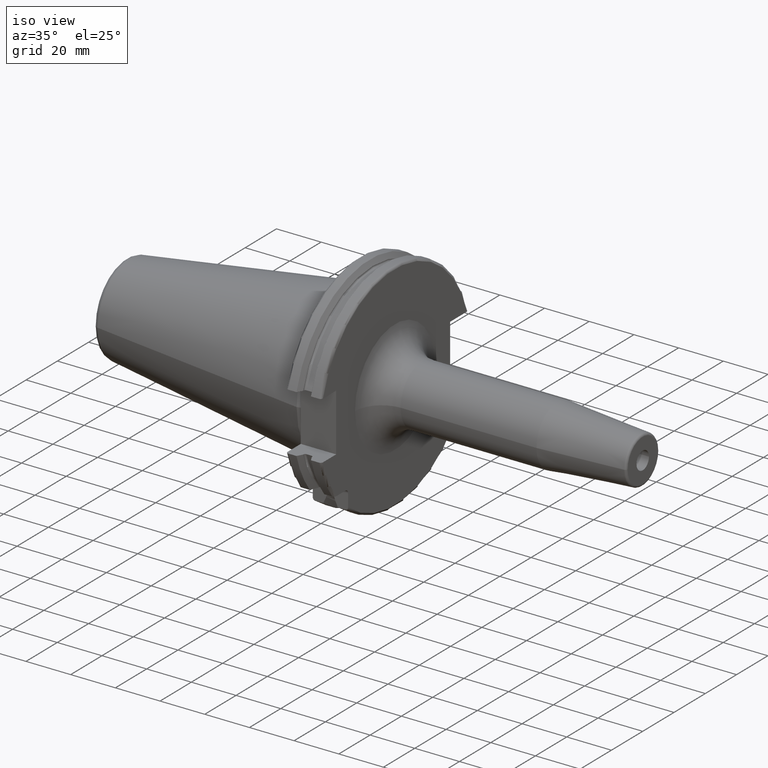
[diagram: clean part render]
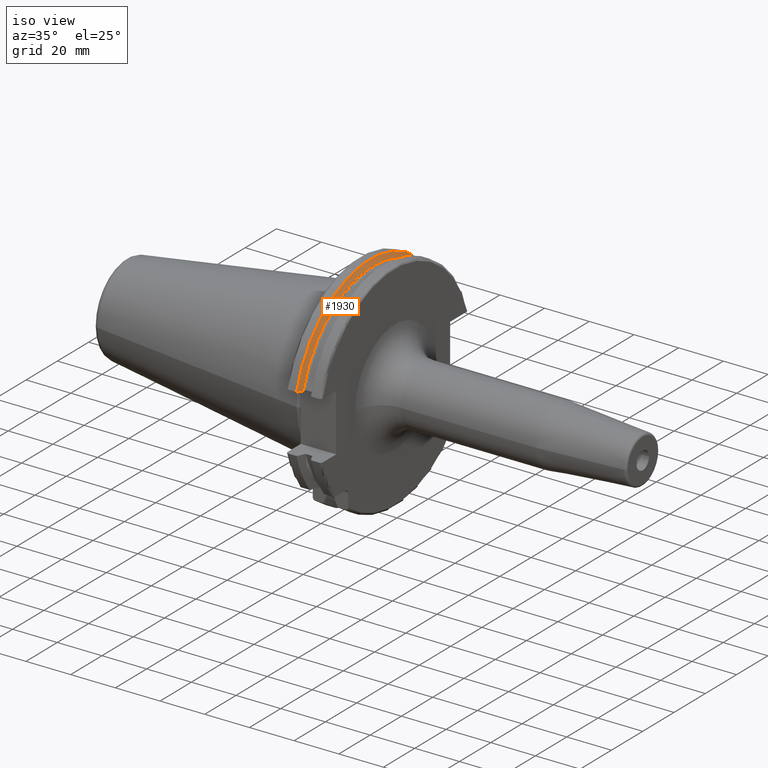
[diagram: same view with one face highlighted and labeled with its STEP entity id]
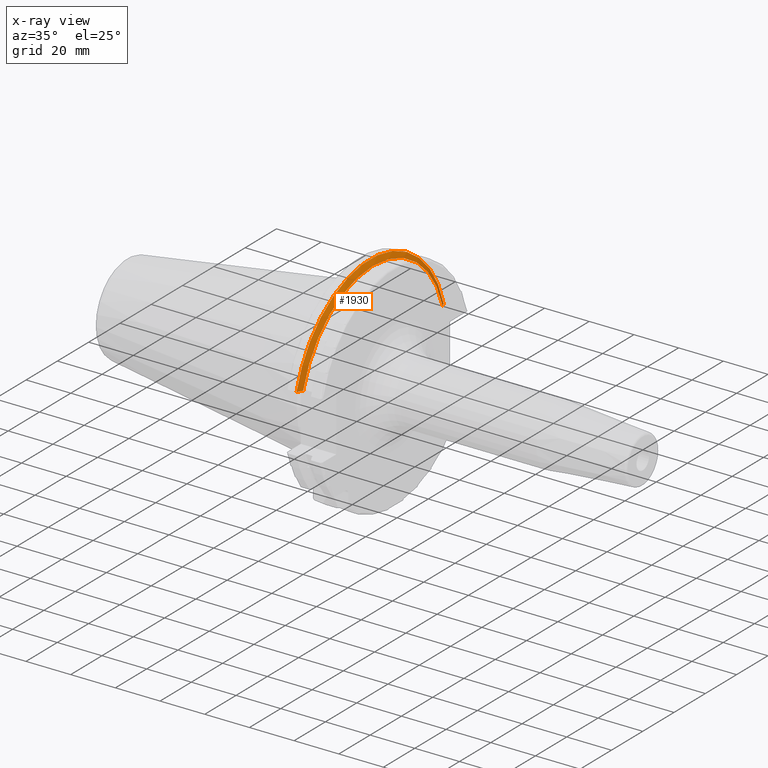
[diagram: x-ray of the same camera — body ghosted, the highlighted face saturated]
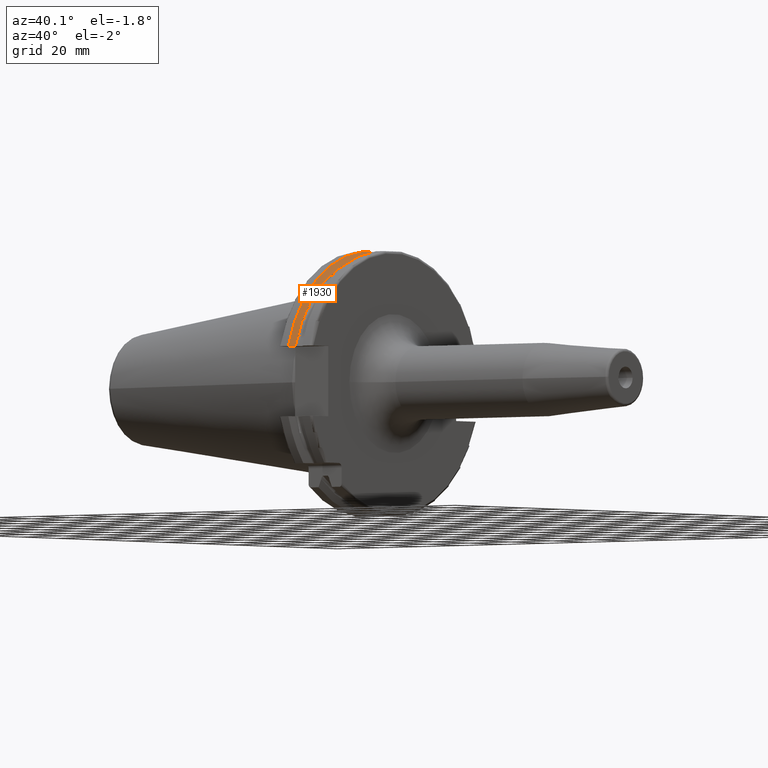
[diagram: same view with one face highlighted and labeled with its STEP entity id]
A machine part, iso view. The second image highlights one B-rep face of the part: STEP entity #1930.
The next image is the same camera in x-ray: the body ghosted, the highlighted face saturated — about 0% of this face is hidden behind the body in this view.
A second angle (auxiliary view) of the same face is appended — the face is thin or edge-on in the first view.
In plain terms, the highlighted conical surface has half-angle 60 deg.
Its self-contained STEP definition (entity closure, byte-faithful):
#302=CARTESIAN_POINT('',(9.2625E0,0.E0,0.E0));
#303=DIRECTION('',(1.E0,0.E0,0.E0));
#304=DIRECTION('',(0.E0,9.606411165078E-1,2.777924499957E-1));
#305=AXIS2_PLACEMENT_3D('',#302,#303,#304);
#333=CARTESIAN_POINT('',(7.934621614173E0,4.699929686974E1,1.29E1));
#334=CARTESIAN_POINT('',(8.085480915039E0,4.672833723043E1,1.29E1));
#335=CARTESIAN_POINT('',(8.384988643814E0,4.619006057422E1,1.29E1));
#336=CARTESIAN_POINT('',(8.827579780447E0,4.539363402665E1,1.29E1));
#337=CARTESIAN_POINT('',(9.118260754177E0,4.486988275438E1,1.29E1));
#338=CARTESIAN_POINT('',(9.2625E0,4.460981716077E1,1.29E1));
#340=CARTESIAN_POINT('',(9.2625E0,-4.460981716077E1,1.29E1));
#341=CARTESIAN_POINT('',(9.118283773553E0,-4.486984125009E1,1.29E1));
#342=CARTESIAN_POINT('',(8.827633549554E0,-4.539353719098E1,1.29E1));
#343=CARTESIAN_POINT('',(8.385043355543E0,-4.618996220278E1,1.29E1));
#344=CARTESIAN_POINT('',(8.085504386120E0,-4.672829507383E1,1.29E1));
#345=CARTESIAN_POINT('',(7.934621614173E0,-4.699929686974E1,1.29E1));
#480=CARTESIAN_POINT('',(7.934621614173E0,0.E0,0.E0));
#481=DIRECTION('',(1.E0,0.E0,0.E0));
#482=DIRECTION('',(0.E0,9.643354064066E-1,2.646832521159E-1));
#483=AXIS2_PLACEMENT_3D('',#480,#481,#482);
#1278=CARTESIAN_POINT('',(9.2625E0,4.460981716077E1,1.29E1));
#1280=VERTEX_POINT('',#1278);
#1290=CARTESIAN_POINT('',(9.2625E0,-4.460981716077E1,1.29E1));
#1292=VERTEX_POINT('',#1290);
#1316=VERTEX_POINT('',#333);
#1317=VERTEX_POINT('',#345);
#1917=CARTESIAN_POINT('',(8.598560807087E0,0.E0,0.E0));
#1918=DIRECTION('',(-1.E0,0.E0,0.E0));
#1919=DIRECTION('',(0.E0,1.E0,0.E0));
#1920=AXIS2_PLACEMENT_3D('',#1917,#1918,#1919);
#1921=CONICAL_SURFACE('',#1920,4.758752358474E1,6.E1);
#1922=ORIENTED_EDGE('',*,*,#1891,.T.);
#1923=ORIENTED_EDGE('',*,*,#1851,.T.);
#1925=ORIENTED_EDGE('',*,*,#1924,.T.);
#1927=ORIENTED_EDGE('',*,*,#1926,.F.);
#1928=EDGE_LOOP('',(#1922,#1923,#1925,#1927));
#1929=FACE_OUTER_BOUND('',#1928,.F.);
#1930=ADVANCED_FACE('',(#1929),#1921,.T.);
#306=CIRCLE('',#305,4.643754716948E1);
#339=B_SPLINE_CURVE_WITH_KNOTS('',3,(#333,#334,#335,#336,#337,#338),
.UNSPECIFIED.,.F.,.F.,(4,1,1,4),(0.E0,3.333333333333E-1,6.666666666667E-1,1.E0),
.UNSPECIFIED.);
#346=B_SPLINE_CURVE_WITH_KNOTS('',3,(#340,#341,#342,#343,#344,#345),
.UNSPECIFIED.,.F.,.F.,(4,1,1,4),(0.E0,3.333333333333E-1,6.666666666667E-1,1.E0),
.UNSPECIFIED.);
#484=CIRCLE('',#483,4.87375E1);
#1851=EDGE_CURVE('',#1280,#1292,#306,.T.);
#1891=EDGE_CURVE('',#1316,#1280,#339,.T.);
#1924=EDGE_CURVE('',#1292,#1317,#346,.T.);
#1926=EDGE_CURVE('',#1316,#1317,#484,.T.);